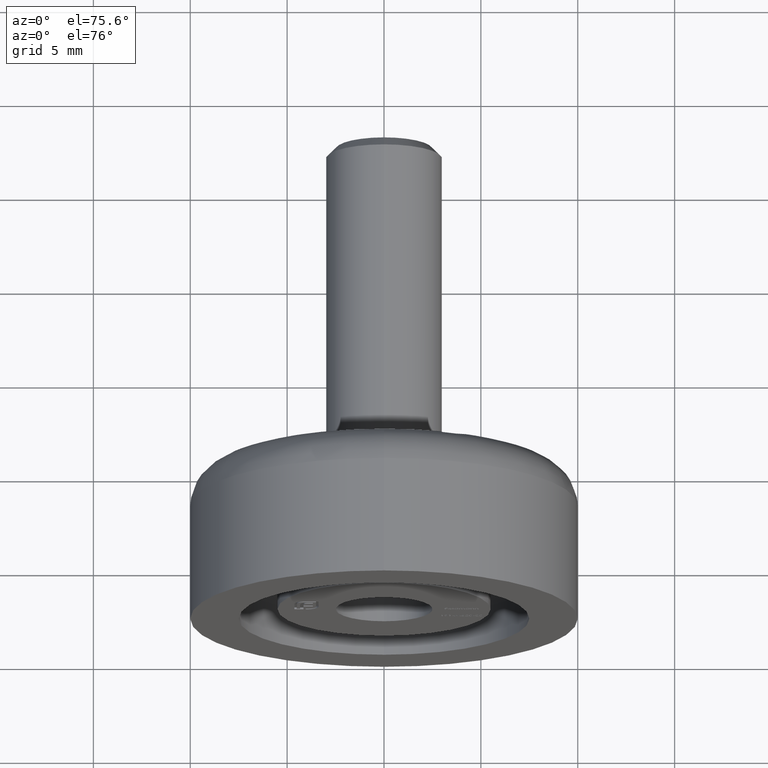
[diagram: clean part render]
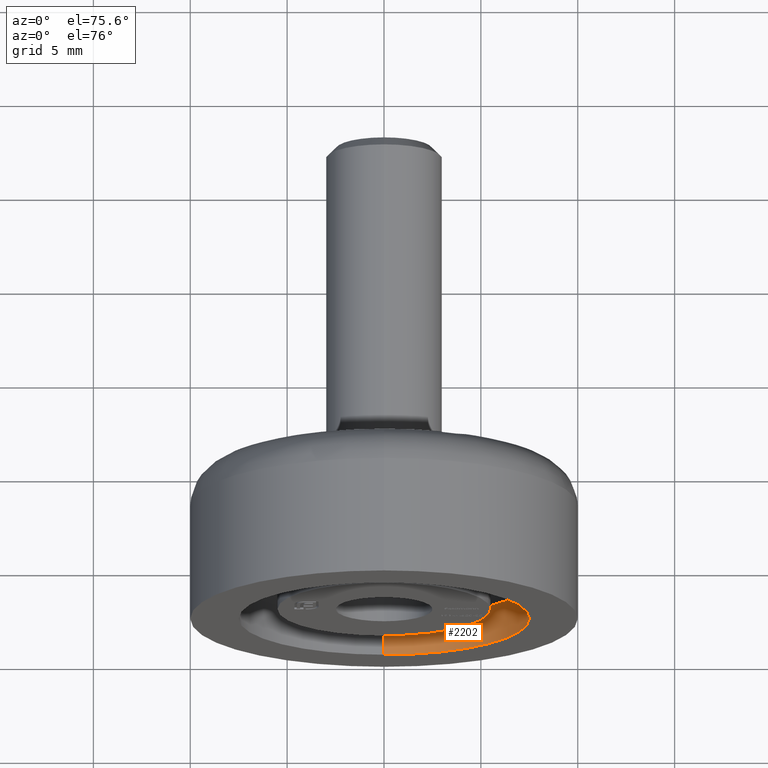
[diagram: same view with one face highlighted and labeled with its STEP entity id]
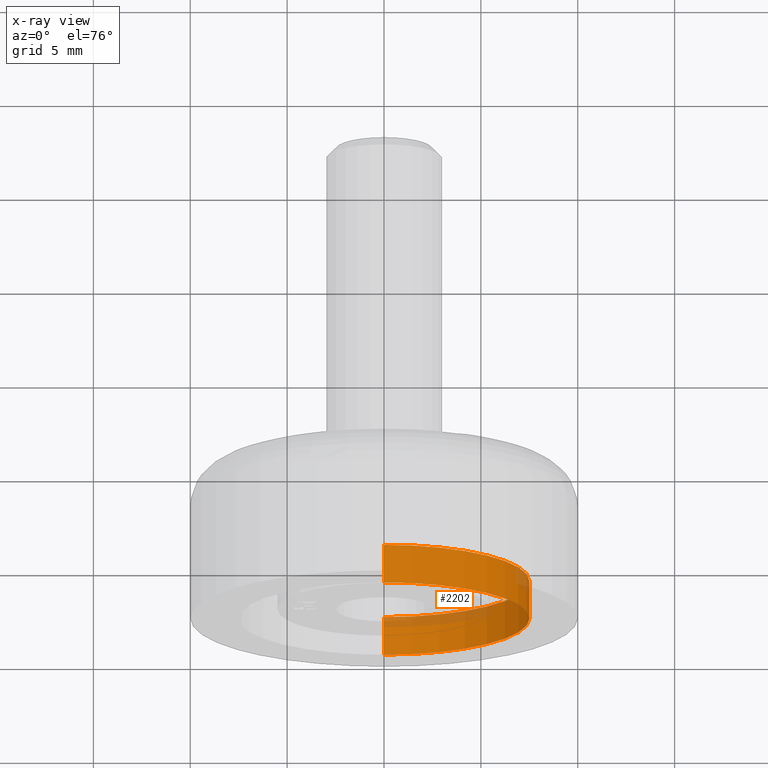
[diagram: x-ray of the same camera — body ghosted, the highlighted face saturated]
A machine part, auxiliary view. The second image highlights one B-rep face of the part: STEP entity #2202.
The next image is the same camera in x-ray: the body ghosted, the highlighted face saturated — about 12% of this face is hidden behind the body in this view.
In plain terms, the highlighted cylindrical surface (partial cylindrical patch) has radius 7.5 mm, axis along (-0, -1, -0).
Its self-contained STEP definition (entity closure, byte-faithful):
#34 = EDGE_CURVE ( 'NONE', #1386, #8640, #9889, .T. ) ;
#1051 = DIRECTION ( 'NONE',  ( -0.000000000000000000, -1.000000000000000000, -0.000000000000000000 ) ) ;
#1321 = ORIENTED_EDGE ( 'NONE', *, *, #4535, .T. ) ;
#1386 = VERTEX_POINT ( 'NONE', #12605 ) ;
#1657 = DIRECTION ( 'NONE',  ( 0.000000000000000000, 0.000000000000000000, -1.000000000000000000 ) ) ;
#1778 = CARTESIAN_POINT ( 'NONE',  ( 0.000000000000000000, 3.000000000000000000, -7.500000000000000000 ) ) ;
#2202 = ADVANCED_FACE ( 'NONE', ( #4438 ), #7885, .F. ) ;
#3266 = LINE ( 'NONE', #5602, #5821 ) ;
#4187 = DIRECTION ( 'NONE',  ( -0.000000000000000000, -1.000000000000000000, -0.000000000000000000 ) ) ;
#4438 = FACE_OUTER_BOUND ( 'NONE', #9301, .T. ) ;
#4459 = CARTESIAN_POINT ( 'NONE',  ( 0.000000000000000000, 0.000000000000000000, 0.000000000000000000 ) ) ;
#4535 = EDGE_CURVE ( 'NONE', #11895, #7996, #5337, .T. ) ;
#5041 = DIRECTION ( 'NONE',  ( -0.000000000000000000, -1.000000000000000000, -0.000000000000000000 ) ) ;
#5148 = AXIS2_PLACEMENT_3D ( 'NONE', #10904, #5041, #1657 ) ;
#5337 = CIRCLE ( 'NONE', #14131, 7.500000000000000000 ) ;
#5602 = CARTESIAN_POINT ( 'NONE',  ( 9.184850993605147944E-16, 3.000000000000000000, 7.500000000000000000 ) ) ;
#5821 = VECTOR ( 'NONE', #1051, 1000.000000000000000 ) ;
#5919 = CARTESIAN_POINT ( 'NONE',  ( 0.000000000000000000, 2.000000000000000000, 0.000000000000000000 ) ) ;
#5969 = DIRECTION ( 'NONE',  ( 0.000000000000000000, 0.000000000000000000, -1.000000000000000000 ) ) ;
#6304 = AXIS2_PLACEMENT_3D ( 'NONE', #4459, #13533, #10123 ) ;
#7027 = DIRECTION ( 'NONE',  ( -0.000000000000000000, 1.000000000000000000, -0.000000000000000000 ) ) ;
#7498 = CARTESIAN_POINT ( 'NONE',  ( 9.184850993605147944E-16, 0.000000000000000000, 7.500000000000000000 ) ) ;
#7885 = CYLINDRICAL_SURFACE ( 'NONE', #5148, 7.500000000000000000 ) ;
#7996 = VERTEX_POINT ( 'NONE', #12736 ) ;
#8640 = VERTEX_POINT ( 'NONE', #7498 ) ;
#9191 = ORIENTED_EDGE ( 'NONE', *, *, #34, .T. ) ;
#9301 = EDGE_LOOP ( 'NONE', ( #14059, #1321, #11007, #9191 ) ) ;
#9889 = CIRCLE ( 'NONE', #6304, 7.500000000000000000 ) ;
#9944 = CARTESIAN_POINT ( 'NONE',  ( 9.184850993605147944E-16, 2.000000000000000000, 7.500000000000000000 ) ) ;
#10123 = DIRECTION ( 'NONE',  ( 0.000000000000000000, 0.000000000000000000, -1.000000000000000000 ) ) ;
#10904 = CARTESIAN_POINT ( 'NONE',  ( 0.000000000000000000, 3.000000000000000000, 0.000000000000000000 ) ) ;
#11007 = ORIENTED_EDGE ( 'NONE', *, *, #13727, .T. ) ;
#11599 = LINE ( 'NONE', #1778, #12310 ) ;
#11895 = VERTEX_POINT ( 'NONE', #9944 ) ;
#12310 = VECTOR ( 'NONE', #4187, 1000.000000000000000 ) ;
#12605 = CARTESIAN_POINT ( 'NONE',  ( 0.000000000000000000, 0.000000000000000000, -7.500000000000000000 ) ) ;
#12736 = CARTESIAN_POINT ( 'NONE',  ( 0.000000000000000000, 2.000000000000000000, -7.500000000000000000 ) ) ;
#13533 = DIRECTION ( 'NONE',  ( 0.000000000000000000, -1.000000000000000000, 0.000000000000000000 ) ) ;
#13727 = EDGE_CURVE ( 'NONE', #7996, #1386, #11599, .T. ) ;
#14059 = ORIENTED_EDGE ( 'NONE', *, *, #14354, .F. ) ;
#14131 = AXIS2_PLACEMENT_3D ( 'NONE', #5919, #7027, #5969 ) ;
#14354 = EDGE_CURVE ( 'NONE', #11895, #8640, #3266, .T. ) ;